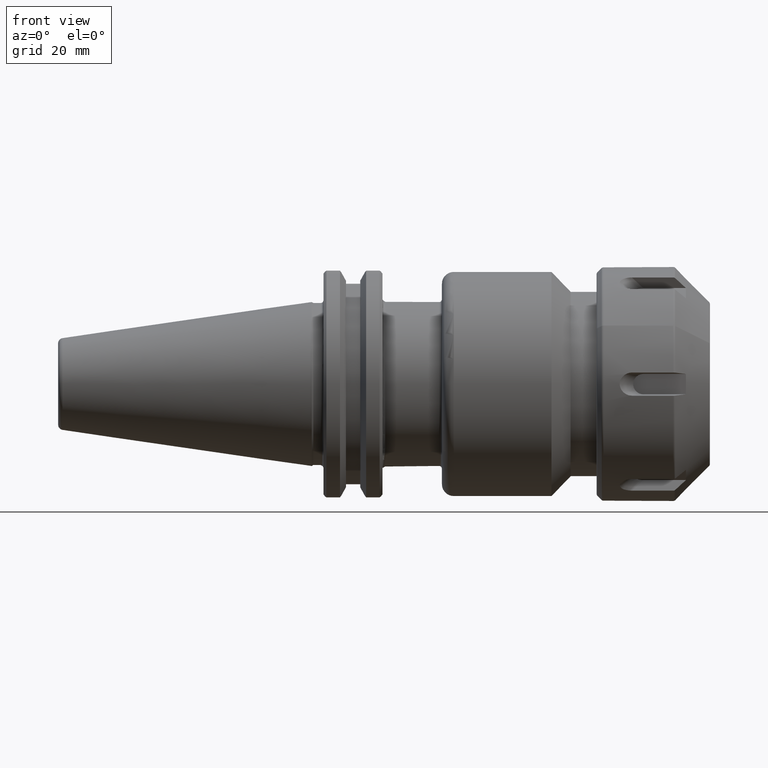
[diagram: clean part render]
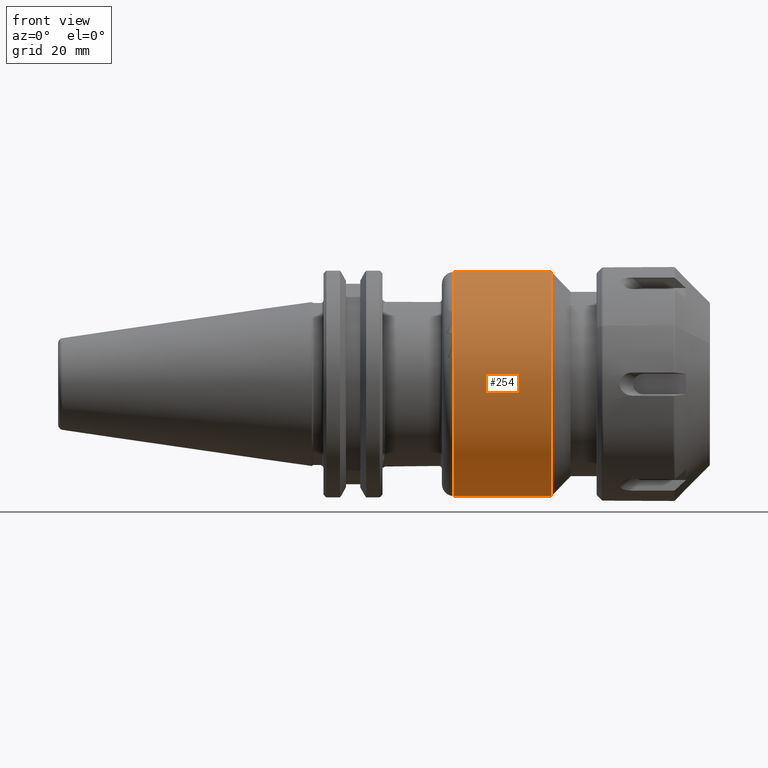
[diagram: same view with one face highlighted and labeled with its STEP entity id]
A machine part, front view. The second image highlights one B-rep face of the part: STEP entity #254.
In plain terms, the highlighted cylindrical surface (bore or boss wall) has radius 30.1625 mm, axis along (1, 0, 0).
Its self-contained STEP definition (entity closure, byte-faithful):
#203=CARTESIAN_POINT('',(1.505,1.1875,-2.908536E-016));
#204=VERTEX_POINT('',#203);
#205=CARTESIAN_POINT('',(1.505,0.0,0.0));
#206=DIRECTION('',(-1.0,0.0,0.0));
#207=DIRECTION('',(0.0,-1.0,0.0));
#208=AXIS2_PLACEMENT_3D('',#205,#206,#207);
#209=CIRCLE('',#208,1.1875);
#210=EDGE_CURVE('',#204,#204,#209,.T.);
#235=CARTESIAN_POINT('',(1.960875984251968,0.0,0.0));
#236=DIRECTION('',(1.0,0.0,0.0));
#237=DIRECTION('',(0.0,1.0,0.0));
#238=AXIS2_PLACEMENT_3D('',#235,#236,#237);
#239=CYLINDRICAL_SURFACE('',#238,1.1875);
#240=CARTESIAN_POINT('',(2.541751968503937,1.1875,0.0));
#241=VERTEX_POINT('',#240);
#242=CARTESIAN_POINT('',(2.541751968503937,0.0,0.0));
#243=DIRECTION('',(1.0,0.0,0.0));
#244=DIRECTION('',(0.0,1.0,0.0));
#245=AXIS2_PLACEMENT_3D('',#242,#243,#244);
#246=CIRCLE('',#245,1.1875);
#247=EDGE_CURVE('',#241,#241,#246,.T.);
#248=ORIENTED_EDGE('',*,*,#247,.F.);
#249=EDGE_LOOP('',(#248));
#250=FACE_OUTER_BOUND('',#249,.T.);
#251=ORIENTED_EDGE('',*,*,#210,.F.);
#252=EDGE_LOOP('',(#251));
#253=FACE_BOUND('',#252,.T.);
#254=ADVANCED_FACE('',(#250,#253),#239,.T.);